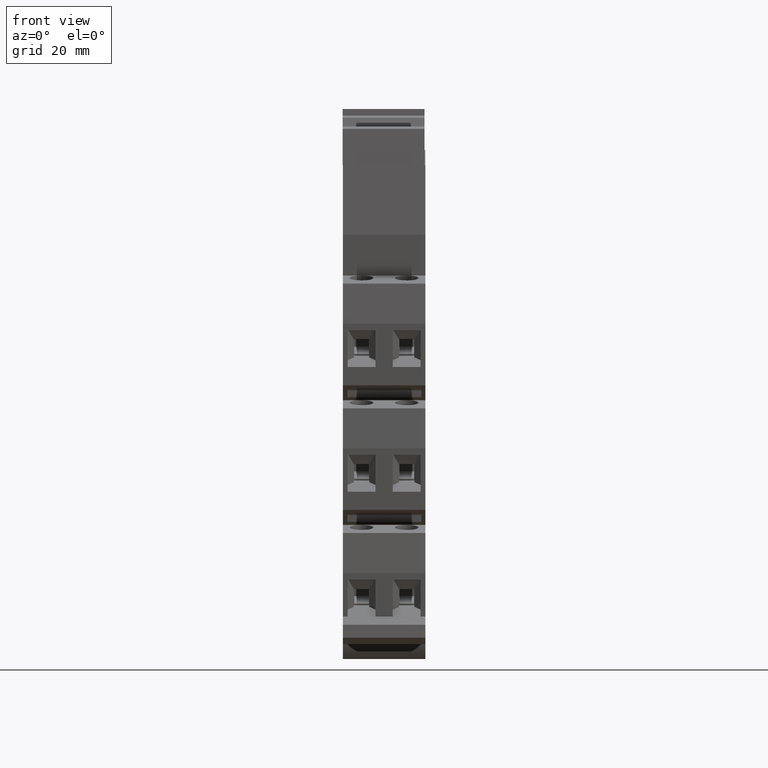
[diagram: clean part render]
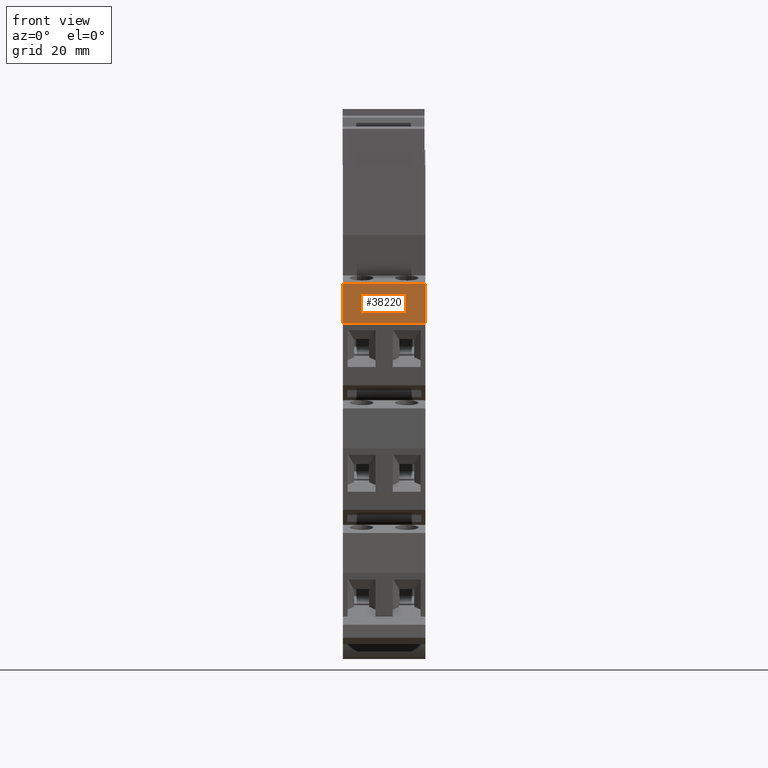
[diagram: same view with one face highlighted and labeled with its STEP entity id]
A machine part, front view. The second image highlights one B-rep face of the part: STEP entity #38220.
In plain terms, the highlighted planar face has unit normal (0, 1, 0).
Its self-contained STEP definition (entity closure, byte-faithful):
#1480=CARTESIAN_POINT('',(27.3071599999258,47.4663726134532,
-14.7000000000029));
#1490=VERTEX_POINT('',#1480);
#1520=CARTESIAN_POINT('',(27.3071599999261,51.105821648029,
-14.7000000000029));
#1530=DIRECTION('',(7.52336794624177E-14,1.,-3.81404366214676E-28));
#1540=VECTOR('',#1530,1.);
#1550=LINE('',#1520,#1540);
#1560=CARTESIAN_POINT('',(27.3071599999263,54.1999999999732,
-14.700000000005));
#1570=VERTEX_POINT('',#1560);
#1580=EDGE_CURVE('',#1490,#1570,#1550,.T.);
#6780=CARTESIAN_POINT('',(27.3071599999254,54.1999999999732,
-0.800000000003043));
#6790=VERTEX_POINT('',#6780);
#6820=CARTESIAN_POINT('',(27.3071599999252,51.105821648029,
-0.800000000002909));
#6830=DIRECTION('',(7.52336794624177E-14,1.,-3.81404366214676E-28));
#6840=VECTOR('',#6830,1.);
#6850=LINE('',#6820,#6840);
#6860=CARTESIAN_POINT('',(27.3071599999249,47.4663726134532,
-0.800000000002909));
#6870=VERTEX_POINT('',#6860);
#6880=EDGE_CURVE('',#6870,#6790,#6850,.T.);
#37900=CARTESIAN_POINT('',(27.3071599999249,47.4663726134532,
-9.40000000000252));
#37910=DIRECTION('',(-1.89326617253043E-28,-3.52965951279815E-28,-1.));
#37920=VECTOR('',#37910,1.);
#37930=LINE('',#37900,#37920);
#37940=EDGE_CURVE('',#6870,#1490,#37930,.T.);
#38060=CARTESIAN_POINT('',(27.3071599999258,47.466372613726,
-14.7000000000017));
#38070=DIRECTION('',(-1.,7.52336794624177E-14,-6.27941947176454E-14));
#38080=DIRECTION('',(-7.52336794624177E-14,-1.,-4.2638920073164E-28));
#38090=AXIS2_PLACEMENT_3D('',#38060,#38070,#38080);
#38100=PLANE('',#38090);
#38110=ORIENTED_EDGE('',*,*,#6880,.F.);
#38120=CARTESIAN_POINT('',(27.3071599999254,54.1999999999732,
-9.40000000000252));
#38130=DIRECTION('',(-1.89326617253043E-28,-3.83485007550553E-28,-1.));
#38140=VECTOR('',#38130,1.);
#38150=LINE('',#38120,#38140);
#38160=EDGE_CURVE('',#6790,#1570,#38150,.T.);
#38170=ORIENTED_EDGE('',*,*,#38160,.F.);
#38180=ORIENTED_EDGE('',*,*,#1580,.T.);
#38190=ORIENTED_EDGE('',*,*,#37940,.T.);
#38200=EDGE_LOOP('',(#38190,#38180,#38170,#38110));
#38210=FACE_OUTER_BOUND('',#38200,.T.);
#38220=ADVANCED_FACE('',(#38210),#38100,.F.);